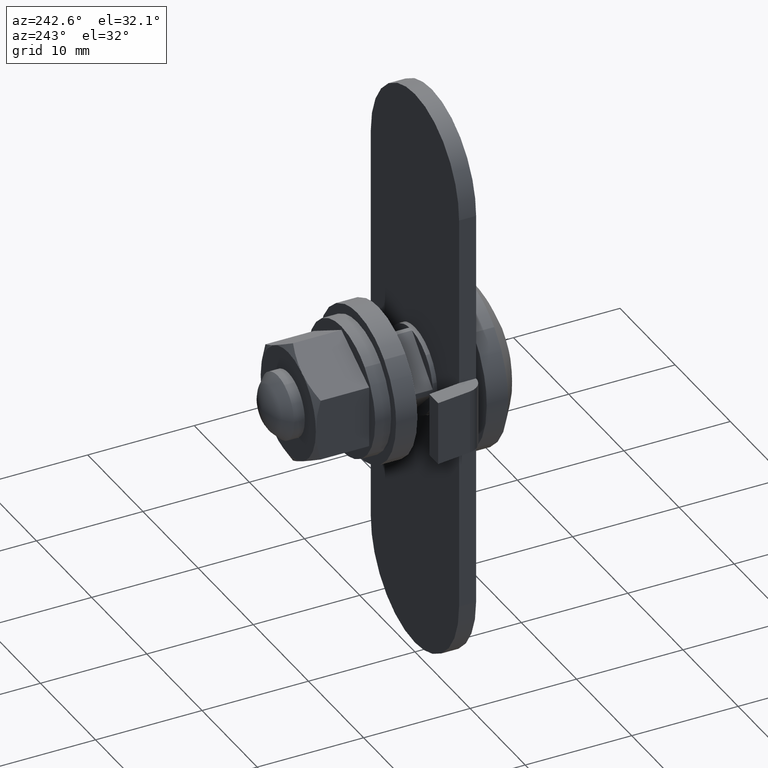
[diagram: clean part render]
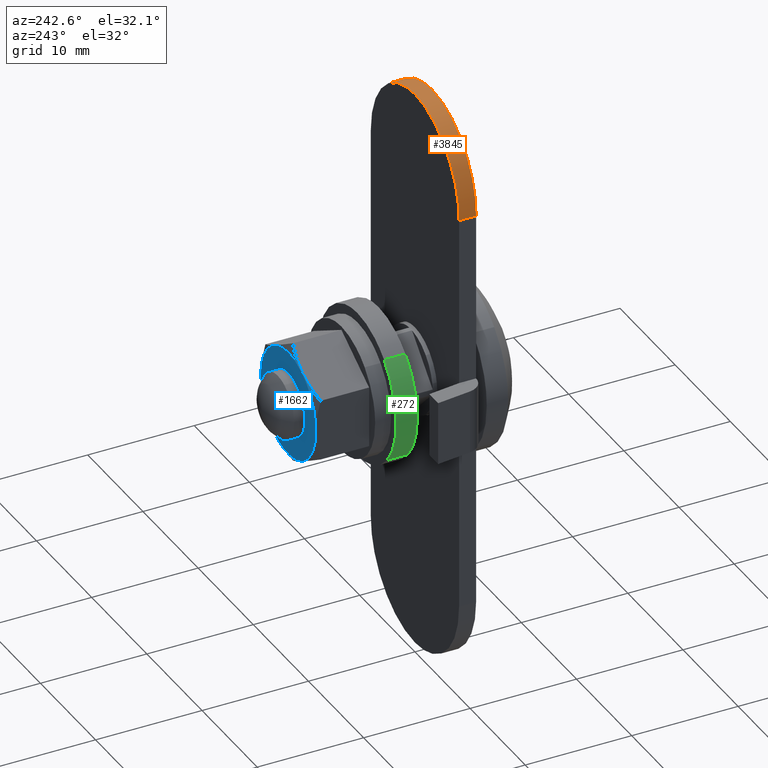
[diagram: same view with three faces highlighted in distinct colors, each labeled with its STEP entity id]
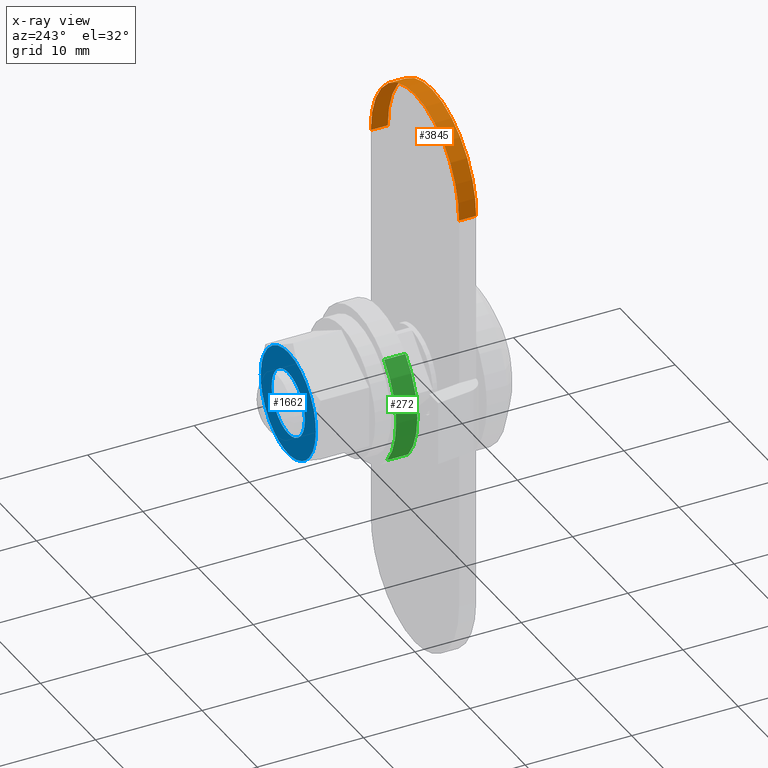
[diagram: x-ray of the same camera — body ghosted, the three highlighted faces saturated]
A machine part, auxiliary view with three faces highlighted in distinct colors.
The next image is the same camera in x-ray (body ghosted, the three faces saturated) — at least one of them is partly hidden behind the body in this view.
Their STEP definitions:

[orange] entity #3845 — the highlighted face is a freeform B-spline surface patch.
#3596=CARTESIAN_POINT('',(8.0,-1.599990999999965,19.0));
#3597=VERTEX_POINT('',#3596);
#3605=CARTESIAN_POINT('',(-0.000000671420413,-1.599990999999965,26.999999999999979));
#3606=VERTEX_POINT('',#3605);
#3607=CARTESIAN_POINT('',(8.0,-1.599990999999965,19.0));
#3608=CARTESIAN_POINT('',(8.000055658176320,-1.599990999999967,19.523601726682081));
#3609=CARTESIAN_POINT('',(7.900058436080794,-1.599990999999963,20.538051594862448));
#3610=CARTESIAN_POINT('',(7.521515978707759,-1.599990999999972,21.814067541485230));
#3611=CARTESIAN_POINT('',(6.957567482298716,-1.599990999999964,23.015969337826039));
#3612=CARTESIAN_POINT('',(6.257013327467415,-1.599990999999957,24.050641715864302));
#3613=CARTESIAN_POINT('',(5.308734373837774,-1.599990999999986,25.028422618844541));
#3614=CARTESIAN_POINT('',(4.324430070476393,-1.599990999999913,25.767838439556130));
#3615=CARTESIAN_POINT('',(3.210262216620889,-1.599991000000043,26.363364711971709));
#3616=CARTESIAN_POINT('',(1.783427558124979,-1.599990999999904,26.859192141998982));
#3617=CARTESIAN_POINT('',(0.670875504879247,-1.599990999999988,27.000181070990550));
#3618=CARTESIAN_POINT('',(-0.000000671420413,-1.599990999999965,26.999999999999979));
#3619=B_SPLINE_CURVE_WITH_KNOTS('',3,(#3607,#3608,#3609,#3610,#3611,#3612,#3613,#3614,#3615,#3616,#3617,#3618),.UNSPECIFIED.,.F.,.U.,(4,1,1,1,1,1,1,1,1,4),(0.000000037951718,1.570796537303250,3.043422620387393,3.976088266977515,5.546892700908940,6.774049362718611,8.050335254018872,9.228443648545097,10.553814228072291,12.566390705773090),.UNSPECIFIED.);
#3620=EDGE_CURVE('',#3597,#3606,#3619,.T.);
#3622=CARTESIAN_POINT('',(-8.0,-1.599990999999965,19.0));
#3623=VERTEX_POINT('',#3622);
#3624=CARTESIAN_POINT('',(-0.000000671420413,-1.599990999999965,26.999999999999979));
#3625=CARTESIAN_POINT('',(-0.409058530334494,-1.599990999999967,27.000021492303130));
#3626=CARTESIAN_POINT('',(-1.128997142312720,-1.599990999999961,26.944659344639899));
#3627=CARTESIAN_POINT('',(-2.218660525742400,-1.599990999999967,26.710486490052840));
#3628=CARTESIAN_POINT('',(-3.145530879441106,-1.599990999999970,26.378850672017400));
#3629=CARTESIAN_POINT('',(-4.095356863511993,-1.599990999999963,25.897084283627049));
#3630=CARTESIAN_POINT('',(-4.883322783046102,-1.599990999999969,25.363563316041908));
#3631=CARTESIAN_POINT('',(-5.646387689577706,-1.599990999999961,24.692976438119072));
#3632=CARTESIAN_POINT('',(-6.249944118269243,-1.599990999999970,24.022936347426349));
#3633=CARTESIAN_POINT('',(-6.856391194409314,-1.599990999999968,23.167463483428559));
#3634=CARTESIAN_POINT('',(-7.353571376795534,-1.599990999999963,22.223432441611699));
#3635=CARTESIAN_POINT('',(-7.722798476186717,-1.599990999999968,21.171135533468910));
#3636=CARTESIAN_POINT('',(-7.946885246248465,-1.599990999999961,20.112638819968112));
#3637=CARTESIAN_POINT('',(-8.000017664104293,-1.599990999999973,19.392695676937169));
#3638=CARTESIAN_POINT('',(-8.0,-1.599990999999965,19.0));
#3639=B_SPLINE_CURVE_WITH_KNOTS('',3,(#3624,#3625,#3626,#3627,#3628,#3629,#3630,#3631,#3632,#3633,#3634,#3635,#3636,#3637,#3638),.UNSPECIFIED.,.F.,.U.,(4,1,1,1,1,1,1,1,1,1,1,1,4),(0.000000038011205,1.227172697971893,2.159840542873159,3.337947909478849,4.172435515595490,5.350548260045036,6.185028635192336,7.215843494601299,8.050334768926938,9.326617916998785,10.406544262785321,11.388302338843920,12.566389948924650),.UNSPECIFIED.);
#3640=EDGE_CURVE('',#3606,#3623,#3639,.T.);
#3706=CARTESIAN_POINT('',(8.0,0.0,19.0));
#3707=VERTEX_POINT('',#3706);
#3758=CARTESIAN_POINT('',(-8.0,0.0,19.0));
#3759=VERTEX_POINT('',#3758);
#3765=CARTESIAN_POINT('',(-0.000000671420413,0.0,26.999999999999979));
#3766=VERTEX_POINT('',#3765);
#3767=CARTESIAN_POINT('',(-0.000000671420413,0.0,26.999999999999979));
#3768=CARTESIAN_POINT('',(-0.409058530334453,0.0,27.000021492303119));
#3769=CARTESIAN_POINT('',(-1.128997142312503,0.0,26.944659344639810));
#3770=CARTESIAN_POINT('',(-2.218660525744756,0.0,26.710486490053849));
#3771=CARTESIAN_POINT('',(-3.145530874310826,0.0,26.378850669165359));
#3772=CARTESIAN_POINT('',(-4.095356896828961,0.0,25.897084302152621));
#3773=CARTESIAN_POINT('',(-4.883322665121735,0.0,25.363563250486859));
#3774=CARTESIAN_POINT('',(-5.646380869981027,0.0,24.692971783885781));
#3775=CARTESIAN_POINT('',(-6.414601708059358,0.0,23.840227268056552));
#3776=CARTESIAN_POINT('',(-7.107338756405541,0.0,22.760998469852780));
#3777=CARTESIAN_POINT('',(-7.575450113111739,0.0,21.640444240427279));
#3778=CARTESIAN_POINT('',(-7.908213628331541,0.0,20.423490316932750));
#3779=CARTESIAN_POINT('',(-8.000114431770410,0.0,19.572695766128980));
#3780=CARTESIAN_POINT('',(-8.0,0.0,19.0));
#3781=B_SPLINE_CURVE_WITH_KNOTS('',3,(#3767,#3768,#3769,#3770,#3771,#3772,#3773,#3774,#3775,#3776,#3777,#3778,#3779,#3780),.UNSPECIFIED.,.F.,.U.,(4,1,1,1,1,1,1,1,1,1,1,4),(0.000000038011205,1.227172697971893,2.159840542873159,3.337947909478849,4.172435515595490,5.350548260045036,6.185028635192336,7.215843494601299,8.786653071018664,10.013847000659320,10.848336786208170,12.566389948924650),.UNSPECIFIED.);
#3782=EDGE_CURVE('',#3766,#3759,#3781,.T.);
#3784=CARTESIAN_POINT('',(8.0,0.0,19.0));
#3785=CARTESIAN_POINT('',(8.000035223863407,0.0,19.474505787027748));
#3786=CARTESIAN_POINT('',(7.909521142593536,0.0,20.488983960037849));
#3787=CARTESIAN_POINT('',(7.542416901466003,0.0,21.769546784843889));
#3788=CARTESIAN_POINT('',(6.957576740421087,0.0,23.015974436050140));
#3789=CARTESIAN_POINT('',(6.257007821979242,0.0,24.050639299313659));
#3790=CARTESIAN_POINT('',(5.308735200877441,0.0,25.028423026176888));
#3791=CARTESIAN_POINT('',(4.324430926242860,0.0,25.767841190327420));
#3792=CARTESIAN_POINT('',(3.398362635514022,0.0,26.262807954450619));
#3793=CARTESIAN_POINT('',(2.422760313678783,0.0,26.646046299451200));
#3794=CARTESIAN_POINT('',(1.341705875589080,0.0,26.923897167868589));
#3795=CARTESIAN_POINT('',(0.458145628851911,0.0,27.000034547355241));
#3796=CARTESIAN_POINT('',(-0.000000671420413,0.0,26.999999999999979));
#3797=B_SPLINE_CURVE_WITH_KNOTS('',3,(#3784,#3785,#3786,#3787,#3788,#3789,#3790,#3791,#3792,#3793,#3794,#3795,#3796),.UNSPECIFIED.,.F.,.U.,(4,1,1,1,1,1,1,1,1,1,4),(0.000000037951718,1.423522324093755,3.043422620387393,3.976088266977515,5.546892700908940,6.774049362718611,8.050335254018872,9.228443648545097,9.915672165121981,11.191955773266610,12.566390705773090),.UNSPECIFIED.);
#3798=EDGE_CURVE('',#3707,#3766,#3797,.T.);
#3811=CARTESIAN_POINT('',(-7.997258599804455,0.039999774999999,18.790584413537012));
#3812=CARTESIAN_POINT('',(-7.997258599804455,-1.640990769374965,18.790584413537012));
#3813=CARTESIAN_POINT('',(-8.217936582743215,0.039999774999999,27.217936582743196));
#3814=CARTESIAN_POINT('',(-8.217936582743215,-1.640990769374965,27.217936582743196));
#3815=CARTESIAN_POINT('',(0.209415586462976,0.039999774999999,26.997258599804461));
#3816=CARTESIAN_POINT('',(0.209415586462976,-1.640990769374965,26.997258599804461));
#3817=CARTESIAN_POINT('',(8.636767755669169,0.039999774999999,26.776580616865715));
#3818=CARTESIAN_POINT('',(8.636767755669169,-1.640990769374965,26.776580616865715));
#3819=CARTESIAN_POINT('',(7.975338669865026,0.039999774999999,18.372327234177249));
#3820=CARTESIAN_POINT('',(7.975338669865026,-1.640990769374965,18.372327234177249));
#3828=(BOUNDED_SURFACE()B_SPLINE_SURFACE(1,2,((#3811,#3813,#3815,#3817,#3819),(#3812,#3814,#3816,#3818,#3820)),.UNSPECIFIED.,.F.,.F.,.U.)B_SPLINE_SURFACE_WITH_KNOTS((2,2),(3,2,3),(0.0,1.0),(0.0,13.748284990938750,27.496569981877510),.UNSPECIFIED.)GEOMETRIC_REPRESENTATION_ITEM()RATIONAL_B_SPLINE_SURFACE(((1.0,0.688354575693754,1.0,0.688354575693754,1.0),(1.0,0.688354575693754,1.0,0.688354575693754,1.0)))REPRESENTATION_ITEM('')SURFACE());
#3829=ORIENTED_EDGE('',*,*,#3640,.F.);
#3830=ORIENTED_EDGE('',*,*,#3620,.F.);
#3831=CARTESIAN_POINT('',(8.0,0.0,19.0));
#3832=CARTESIAN_POINT('',(8.0,-1.599990999999965,19.0));
#3833=QUASI_UNIFORM_CURVE('',1,(#3831,#3832),.UNSPECIFIED.,.F.,.U.);
#3834=EDGE_CURVE('',#3707,#3597,#3833,.T.);
#3835=ORIENTED_EDGE('',*,*,#3834,.F.);
#3836=ORIENTED_EDGE('',*,*,#3798,.T.);
#3837=ORIENTED_EDGE('',*,*,#3782,.T.);
#3838=CARTESIAN_POINT('',(-8.0,0.0,19.0));
#3839=CARTESIAN_POINT('',(-8.0,-1.599990999999965,19.0));
#3840=QUASI_UNIFORM_CURVE('',1,(#3838,#3839),.UNSPECIFIED.,.F.,.U.);
#3841=EDGE_CURVE('',#3759,#3623,#3840,.T.);
#3842=ORIENTED_EDGE('',*,*,#3841,.T.);
#3843=EDGE_LOOP('',(#3829,#3830,#3835,#3836,#3837,#3842));
#3844=FACE_OUTER_BOUND('',#3843,.T.);
#3845=ADVANCED_FACE('',(#3844),#3828,.T.);

[blue] entity #1662 — the highlighted face is a freeform B-spline surface patch.
#1063=CARTESIAN_POINT('',(-2.290667037975867,11.900009000001109,-1.937226191180447));
#1064=VERTEX_POINT('',#1063);
#1065=CARTESIAN_POINT('',(0.0,11.900009000000100,-3.000000000000001));
#1066=VERTEX_POINT('',#1065);
#1067=CARTESIAN_POINT('',(-2.290667037975867,11.900009000001109,-1.937226191180447));
#1068=CARTESIAN_POINT('',(-2.167959187522973,11.900009000001040,-2.082355599094729));
#1069=CARTESIAN_POINT('',(-1.914335783619817,11.900009000000990,-2.330103358382610));
#1070=CARTESIAN_POINT('',(-1.520169120097356,11.900009000000770,-2.598203674636476));
#1071=CARTESIAN_POINT('',(-1.104753079972125,11.900009000000541,-2.801322401318448));
#1072=CARTESIAN_POINT('',(-0.610866815784699,11.900009000000500,-2.957055987698311));
#1073=CARTESIAN_POINT('',(-0.217203148779850,11.900009000000029,-3.000038314640104));
#1074=CARTESIAN_POINT('',(0.0,11.900009000000100,-3.000000000000001));
#1075=B_SPLINE_CURVE_WITH_KNOTS('',3,(#1067,#1068,#1069,#1070,#1071,#1072,#1073,#1074),.UNSPECIFIED.,.F.,.U.,(4,1,1,1,1,4),(0.000000023288281,0.570155095699295,1.058868080514473,1.425382199042716,1.954818718265623,2.606424949918516),.UNSPECIFIED.);
#1076=EDGE_CURVE('',#1064,#1066,#1075,.T.);
#1138=CARTESIAN_POINT('',(-2.065063661839178,11.900008999999780,2.176122990045787));
#1139=VERTEX_POINT('',#1138);
#1145=CARTESIAN_POINT('',(0.0,11.900009000000100,2.999999999999999));
#1146=VERTEX_POINT('',#1145);
#1147=CARTESIAN_POINT('',(0.0,11.900009000000100,2.999999999999999));
#1148=CARTESIAN_POINT('',(-0.225397064897820,11.900009000000059,3.000039538543419));
#1149=CARTESIAN_POINT('',(-0.581261604594141,11.900009000000029,2.959698161269786));
#1150=CARTESIAN_POINT('',(-1.116575282321621,11.900008999999930,2.799582209725324));
#1151=CARTESIAN_POINT('',(-1.598121602386671,11.900008999999860,2.562969909714258));
#1152=CARTESIAN_POINT('',(-1.918796305333239,11.900008999999800,2.314960937211985));
#1153=CARTESIAN_POINT('',(-2.065063661839178,11.900008999999780,2.176122990045787));
#1154=B_SPLINE_CURVE_WITH_KNOTS('',3,(#1147,#1148,#1149,#1150,#1151,#1152,#1153),.UNSPECIFIED.,.F.,.U.,(4,1,1,1,4),(0.000000017797151,0.676183665800205,1.067665248286472,1.672661792430447,2.277668014750611),.UNSPECIFIED.);
#1155=EDGE_CURVE('',#1146,#1139,#1154,.T.);
#1157=CARTESIAN_POINT('',(2.999999999999952,11.900009000000100,0.000000537233255));
#1158=VERTEX_POINT('',#1157);
#1159=CARTESIAN_POINT('',(2.999999999999952,11.900009000000100,0.000000537233255));
#1160=CARTESIAN_POINT('',(3.000038910623196,11.900009000000130,0.233163766038172));
#1161=CARTESIAN_POINT('',(2.943945716723275,11.900009000000050,0.711755770054638));
#1162=CARTESIAN_POINT('',(2.707029555305302,11.900009000000130,1.349196269604267));
#1163=CARTESIAN_POINT('',(2.370753176380269,11.900009000000081,1.865983012986135));
#1164=CARTESIAN_POINT('',(1.971576901237931,11.900009000000161,2.285251906558493));
#1165=CARTESIAN_POINT('',(1.459357704642141,11.900008999999979,2.650805143898392));
#1166=CARTESIAN_POINT('',(0.785357775257285,11.900009000000100,2.929948391237042));
#1167=CARTESIAN_POINT('',(0.269986767484092,11.900009000000191,3.000087746538068));
#1168=CARTESIAN_POINT('',(0.0,11.900009000000100,2.999999999999999));
#1169=B_SPLINE_CURVE_WITH_KNOTS('',3,(#1159,#1160,#1161,#1162,#1163,#1164,#1165,#1166,#1167,#1168),.UNSPECIFIED.,.F.,.U.,(4,1,1,1,1,1,1,4),(0.000000070898518,0.699489185830833,1.435820893225957,2.024868896167751,2.540268673966529,3.166147695031544,3.902479707221286,4.712418245835633),.UNSPECIFIED.);
#1170=EDGE_CURVE('',#1158,#1146,#1169,.T.);
#1172=CARTESIAN_POINT('',(0.0,11.900009000000100,-3.000000000000001));
#1173=CARTESIAN_POINT('',(0.319092676619438,11.900009000000100,-3.000183218651827));
#1174=CARTESIAN_POINT('',(0.895748422979232,11.900009000000100,-2.907081071898451));
#1175=CARTESIAN_POINT('',(1.620714660074322,11.900009000000111,-2.558739713039714));
#1176=CARTESIAN_POINT('',(2.193379752489969,11.900009000000100,-2.088761186176474));
#1177=CARTESIAN_POINT('',(2.564976969292179,11.900009000000081,-1.594100231254664));
#1178=CARTESIAN_POINT('',(2.820635522840400,11.900009000000050,-1.061908591088697));
#1179=CARTESIAN_POINT('',(2.964887660670760,11.900009000000219,-0.564500921336835));
#1180=CARTESIAN_POINT('',(3.000016138913902,11.900008999999940,-0.184076942392590));
#1181=CARTESIAN_POINT('',(2.999999999999952,11.900009000000100,0.000000537233255));
#1182=B_SPLINE_CURVE_WITH_KNOTS('',3,(#1172,#1173,#1174,#1175,#1176,#1177,#1178,#1179,#1180,#1181),.UNSPECIFIED.,.F.,.U.,(4,1,1,1,1,1,1,4),(0.000000070712814,0.957209675574935,1.730351467038118,2.393003869041291,3.166148102054831,3.571130579977862,4.160185265990663,4.712418851426512),.UNSPECIFIED.);
#1183=EDGE_CURVE('',#1066,#1158,#1182,.T.);
#1202=CARTESIAN_POINT('',(-2.999999999999952,11.900009000000100,-0.000000537233279));
#1203=VERTEX_POINT('',#1202);
#1204=CARTESIAN_POINT('',(-2.999999999999952,11.900009000000100,-0.000000537233279));
#1205=CARTESIAN_POINT('',(-3.000062594715719,11.900009000000169,-0.241317561811669));
#1206=CARTESIAN_POINT('',(-2.950745809277102,11.900009000000500,-0.647123453710665));
#1207=CARTESIAN_POINT('',(-2.726818136164280,11.900009000000750,-1.314968240211024));
#1208=CARTESIAN_POINT('',(-2.482015100069054,11.900009000001010,-1.711164913226049));
#1209=CARTESIAN_POINT('',(-2.290667037975867,11.900009000001109,-1.937226191180447));
#1210=B_SPLINE_CURVE_WITH_KNOTS('',3,(#1204,#1205,#1206,#1207,#1208,#1209),.UNSPECIFIED.,.F.,.U.,(4,1,1,4),(0.000000013639545,0.723936461505472,1.217527160601653,2.105994165629972),.UNSPECIFIED.);
#1211=EDGE_CURVE('',#1203,#1064,#1210,.T.);
#1213=CARTESIAN_POINT('',(-2.065063661839178,11.900008999999780,2.176122990045787));
#1214=CARTESIAN_POINT('',(-2.221447164893765,11.900008999999811,2.027745861812931));
#1215=CARTESIAN_POINT('',(-2.535111348972070,11.900008999999860,1.658228855808197));
#1216=CARTESIAN_POINT('',(-2.900756865883614,11.900008999999979,0.925620520699102));
#1217=CARTESIAN_POINT('',(-3.000183368291156,11.900009000000050,0.329718657456255));
#1218=CARTESIAN_POINT('',(-2.999999999999952,11.900009000000100,-0.000000537233279));
#1219=B_SPLINE_CURVE_WITH_KNOTS('',3,(#1213,#1214,#1215,#1216,#1217,#1218),.UNSPECIFIED.,.F.,.U.,(4,1,1,4),(0.000000019100853,0.646731345308184,1.445629682783370,2.434751064291093),.UNSPECIFIED.);
#1220=EDGE_CURVE('',#1139,#1203,#1219,.T.);
#1276=CARTESIAN_POINT('',(-4.999999999999941,11.900005618824020,-7.715016E-016));
#1277=VERTEX_POINT('',#1276);
#1329=CARTESIAN_POINT('',(-2.500002568551245,11.900003375496739,-4.330130022601770));
#1330=VERTEX_POINT('',#1329);
#1388=CARTESIAN_POINT('',(5.000000000000171,11.900005618823901,-7.715016E-016));
#1389=VERTEX_POINT('',#1388);
#1509=CARTESIAN_POINT('',(2.499999666618120,11.900009842411640,-4.330118764263081));
#1510=VERTEX_POINT('',#1509);
#1576=CARTESIAN_POINT('',(-4.999999999999941,11.900005618824020,-7.715016E-016));
#1577=CARTESIAN_POINT('',(-5.000049669443217,11.900005486381099,-0.340888435571714));
#1578=CARTESIAN_POINT('',(-4.935603998820210,11.900005228218120,-0.968097529328308));
#1579=CARTESIAN_POINT('',(-4.700442958339231,11.900004869765610,-1.754853156414150));
#1580=CARTESIAN_POINT('',(-4.373365301566627,11.900004521895170,-2.461305975409780));
#1581=CARTESIAN_POINT('',(-3.922631592288516,11.900004153945490,-3.148043034249164));
#1582=CARTESIAN_POINT('',(-3.274680155713946,11.900003748463130,-3.817510745442342));
#1583=CARTESIAN_POINT('',(-2.759804130120716,11.900003492049120,-4.180163728910965));
#1584=CARTESIAN_POINT('',(-2.500002568551245,11.900003375496739,-4.330130022601770));
#1585=B_SPLINE_CURVE_WITH_KNOTS('',3,(#1576,#1577,#1578,#1579,#1580,#1581,#1582,#1583,#1584),.UNSPECIFIED.,.F.,.U.,(4,1,1,1,1,1,4),(0.000000023676209,1.022655724946675,1.881692629094689,2.454388157606577,3.354310345891464,4.336070179740759,5.236002951309609),.UNSPECIFIED.);
#1586=EDGE_CURVE('',#1277,#1330,#1585,.T.);
#1593=CARTESIAN_POINT('',(-5.499499980618004,11.900009000000100,5.499495155052697));
#1594=CARTESIAN_POINT('',(-5.499499980618004,11.900009000000100,-5.499523834627240));
#1595=CARTESIAN_POINT('',(5.499500248839138,11.900009000000100,5.499495155052697));
#1596=CARTESIAN_POINT('',(5.499500248839138,11.900009000000100,-5.499523834627240));
#1597=B_SPLINE_SURFACE_WITH_KNOTS('',1,1,((#1593,#1595),(#1594,#1596)),.UNSPECIFIED.,.F.,.F.,.U.,(2,2),(2,2),(0.0,10.999018989679939),(0.0,10.999000229457140),.UNSPECIFIED.);
#1598=CARTESIAN_POINT('',(2.499999666618120,11.900009842411640,-4.330118764263081));
#1599=CARTESIAN_POINT('',(2.842496488706197,11.900009553169960,-4.132476221085924));
#1600=CARTESIAN_POINT('',(3.447185689573260,11.900008966771630,-3.680007757483824));
#1601=CARTESIAN_POINT('',(4.077047319272815,11.900008157641389,-2.937606233813394));
#1602=CARTESIAN_POINT('',(4.520461647454651,11.900007418928620,-2.183817390186032));
#1603=CARTESIAN_POINT('',(4.887878477294634,11.900006583810979,-1.254369455699325));
#1604=CARTESIAN_POINT('',(5.000162910341920,11.900005967890831,-0.477256133005347));
#1605=CARTESIAN_POINT('',(5.000000000000171,11.900005618823901,-7.715016E-016));
#1606=B_SPLINE_CURVE_WITH_KNOTS('',3,(#1598,#1599,#1600,#1601,#1602,#1603,#1604,#1605),.UNSPECIFIED.,.F.,.U.,(4,1,1,1,1,4),(0.000000023677173,1.186278677870464,2.249845753710979,2.904339016394471,3.804275915136835,5.235994498209959),.UNSPECIFIED.);
#1607=EDGE_CURVE('',#1510,#1389,#1606,.T.);
#1608=ORIENTED_EDGE('',*,*,#1607,.F.);
#1609=CARTESIAN_POINT('',(-2.500002568551245,11.900003375496739,-4.330130022601770));
#1610=CARTESIAN_POINT('',(-2.086782465298820,11.900003909948230,-4.568931758495586));
#1611=CARTESIAN_POINT('',(-1.319225515237190,11.900004902692780,-4.875518380312427));
#1612=CARTESIAN_POINT('',(-0.273400263388834,11.900006255344760,-5.017511053175947));
#1613=CARTESIAN_POINT('',(0.682758400926282,11.900007492023480,-4.982310975489592));
#1614=CARTESIAN_POINT('',(1.593363581467073,11.900008669784320,-4.777847251495222));
#1615=CARTESIAN_POINT('',(2.228413284606983,11.900009491146530,-4.486938770074541));
#1616=CARTESIAN_POINT('',(2.499999666618120,11.900009842411640,-4.330118764263081));
#1617=B_SPLINE_CURVE_WITH_KNOTS('',3,(#1609,#1610,#1611,#1612,#1613,#1614,#1615,#1616),.UNSPECIFIED.,.F.,.U.,(4,1,1,1,1,4),(0.000000023676480,1.431721400886018,2.454388985198478,3.149774742362752,4.295160878096006,5.236004716744321),.UNSPECIFIED.);
#1618=EDGE_CURVE('',#1330,#1510,#1617,.T.);
#1619=ORIENTED_EDGE('',*,*,#1618,.F.);
#1620=ORIENTED_EDGE('',*,*,#1586,.F.);
#1621=CARTESIAN_POINT('',(-0.000000849017591,11.900005618823959,4.999994143658707));
#1622=VERTEX_POINT('',#1621);
#1623=CARTESIAN_POINT('',(-0.000000849017591,11.900005618823959,4.999994143658707));
#1624=CARTESIAN_POINT('',(-0.265891244122290,11.900005618823929,5.000012174539277));
#1625=CARTESIAN_POINT('',(-0.777211215472876,11.900005618824039,4.959109596527179));
#1626=CARTESIAN_POINT('',(-1.575364226401720,11.900005618823940,4.769583271987931));
#1627=CARTESIAN_POINT('',(-2.408206591862182,11.900005618824020,4.418652310918147));
#1628=CARTESIAN_POINT('',(-3.191505401086208,11.900005618823981,3.888270154630940));
#1629=CARTESIAN_POINT('',(-3.888256271539887,11.900005618824030,3.191489187963577));
#1630=CARTESIAN_POINT('',(-4.476368575046842,11.900005618824011,2.323093890785476));
#1631=CARTESIAN_POINT('',(-4.899058637444531,11.900005618824039,1.227151792458958));
#1632=CARTESIAN_POINT('',(-5.000098349980033,11.900005618824000,0.409069033852147));
#1633=CARTESIAN_POINT('',(-4.999999999999941,11.900005618824020,-7.715016E-016));
#1634=B_SPLINE_CURVE_WITH_KNOTS('',3,(#1623,#1624,#1625,#1626,#1627,#1628,#1629,#1630,#1631,#1632,#1633),.UNSPECIFIED.,.F.,.U.,(4,1,1,1,1,1,1,1,4),(0.000000041725249,0.797673560984784,1.533988228748722,2.454389884008507,3.497498921418366,4.356529531242854,5.399637778538608,6.626836056875336,7.854027134939896),.UNSPECIFIED.);
#1635=EDGE_CURVE('',#1622,#1277,#1634,.T.);
#1636=ORIENTED_EDGE('',*,*,#1635,.F.);
#1637=CARTESIAN_POINT('',(5.000000000000171,11.900005618823901,-7.715016E-016));
#1638=CARTESIAN_POINT('',(5.000017749211810,11.900005618823910,0.265890552634401));
#1639=CARTESIAN_POINT('',(4.959116657451716,11.900005618823920,0.777211243256671));
#1640=CARTESIAN_POINT('',(4.788529384438165,11.900005618823860,1.495543320386264));
#1641=CARTESIAN_POINT('',(4.526196395076262,11.900005618823970,2.163359404656779));
#1642=CARTESIAN_POINT('',(4.121890054517867,11.900005618823901,2.877157087402496));
#1643=CARTESIAN_POINT('',(3.569872508992621,11.900005618823769,3.541428631798907));
#1644=CARTESIAN_POINT('',(2.875507707757597,11.900005618824199,4.118418581087517));
#1645=CARTESIAN_POINT('',(2.183786241781941,11.900005618823741,4.521547612790113));
#1646=CARTESIAN_POINT('',(1.227071759303258,11.900005618824091,4.890640115012772));
#1647=CARTESIAN_POINT('',(0.490904415140437,11.900005618823901,5.000234920364200));
#1648=CARTESIAN_POINT('',(-0.000000849017591,11.900005618823959,4.999994143658707));
#1649=B_SPLINE_CURVE_WITH_KNOTS('',3,(#1637,#1638,#1639,#1640,#1641,#1642,#1643,#1644,#1645,#1646,#1647,#1648),.UNSPECIFIED.,.F.,.U.,(4,1,1,1,1,1,1,1,1,4),(0.000000041429454,0.797673657806108,1.533988415497107,2.208948268636263,2.945272408085462,3.988362171905692,4.786045204077906,5.645079595046719,6.381403718252956,7.854028091987579),.UNSPECIFIED.);
#1650=EDGE_CURVE('',#1389,#1622,#1649,.T.);
#1651=ORIENTED_EDGE('',*,*,#1650,.F.);
#1652=EDGE_LOOP('',(#1608,#1619,#1620,#1636,#1651));
#1653=FACE_OUTER_BOUND('',#1652,.T.);
#1654=ORIENTED_EDGE('',*,*,#1183,.T.);
#1655=ORIENTED_EDGE('',*,*,#1170,.T.);
#1656=ORIENTED_EDGE('',*,*,#1155,.T.);
#1657=ORIENTED_EDGE('',*,*,#1220,.T.);
#1658=ORIENTED_EDGE('',*,*,#1211,.T.);
#1659=ORIENTED_EDGE('',*,*,#1076,.T.);
#1660=EDGE_LOOP('',(#1654,#1655,#1656,#1657,#1658,#1659));
#1661=FACE_BOUND('',#1660,.T.);
#1662=ADVANCED_FACE('',(#1653,#1661),#1597,.F.);

[green] entity #272 — the highlighted face is a freeform B-spline surface patch.
#70=CARTESIAN_POINT('',(-5.344889613109434,5.400009000002914,-4.520194410248760));
#71=VERTEX_POINT('',#70);
#120=CARTESIAN_POINT('',(-4.818481888316885,5.400008999998708,5.077620483818892));
#121=VERTEX_POINT('',#120);
#132=CARTESIAN_POINT('',(-4.818481888525673,3.400009000000095,5.077620483620761));
#133=VERTEX_POINT('',#132);
#134=CARTESIAN_POINT('',(-4.818481888316885,5.400008999998708,5.077620483818892));
#135=CARTESIAN_POINT('',(-4.818481888525673,3.400009000000095,5.077620483620761));
#136=QUASI_UNIFORM_CURVE('',1,(#134,#135),.UNSPECIFIED.,.F.,.U.);
#137=EDGE_CURVE('',#121,#133,#136,.T.);
#187=CARTESIAN_POINT('',(-5.344889613389635,3.400009000000095,-4.520194409917437));
#188=VERTEX_POINT('',#187);
#200=CARTESIAN_POINT('',(-5.344889613109434,5.400009000002914,-4.520194410248760));
#201=CARTESIAN_POINT('',(-5.344889613389635,3.400009000000095,-4.520194409917437));
#202=QUASI_UNIFORM_CURVE('',1,(#200,#201),.UNSPECIFIED.,.F.,.U.);
#203=EDGE_CURVE('',#71,#188,#202,.T.);
#208=CARTESIAN_POINT('',(-4.818482029856276,5.450009000000099,5.077620597086010));
#209=CARTESIAN_POINT('',(-9.613550507225485,5.450009000000099,0.527270517091160));
#210=CARTESIAN_POINT('',(-5.344889500583254,5.450009000000100,-4.520194268674178));
#211=CARTESIAN_POINT('',(-4.818482029856276,3.348759000000094,5.077620597086010));
#212=CARTESIAN_POINT('',(-9.613550507225485,3.348759000000094,0.527270517091160));
#213=CARTESIAN_POINT('',(-5.344889500583254,3.348759000000094,-4.520194268674178));
#221=(BOUNDED_SURFACE()B_SPLINE_SURFACE(2,1,((#208,#211),(#209,#212),(#210,#213)),.UNSPECIFIED.,.F.,.F.,.U.)B_SPLINE_SURFACE_WITH_KNOTS((3,3),(2,2),(0.0,11.131004910961529),(0.0,2.101250000000006),.UNSPECIFIED.)GEOMETRIC_REPRESENTATION_ITEM()RATIONAL_B_SPLINE_SURFACE(((1.0,1.0),(0.718822509939086,0.718822509939086),(0.977505800795127,0.977505800795127)))REPRESENTATION_ITEM('')SURFACE());
#222=CARTESIAN_POINT('',(-6.999999999999963,5.400009000000099,-0.000000719347240));
#223=VERTEX_POINT('',#222);
#224=CARTESIAN_POINT('',(-6.999999999999963,5.400009000000099,-0.000000719347240));
#225=CARTESIAN_POINT('',(-7.000048370254477,5.400009000000374,-0.435094834237679));
#226=CARTESIAN_POINT('',(-6.921002394264853,5.400009000000893,-1.279664154986524));
#227=CARTESIAN_POINT('',(-6.594024825291756,5.400009000001623,-2.442086068110899));
#228=CARTESIAN_POINT('',(-6.081505993612591,5.400009000002298,-3.534260102837009));
#229=CARTESIAN_POINT('',(-5.625879970475958,5.400009000002709,-4.188005349370274));
#230=CARTESIAN_POINT('',(-5.344889613109434,5.400009000002914,-4.520194410248760));
#231=B_SPLINE_CURVE_WITH_KNOTS('',3,(#224,#225,#226,#227,#228,#229,#230),.UNSPECIFIED.,.F.,.U.,(4,1,1,1,4),(5.914162E-009,1.305278516062681,2.533771029164062,3.608708428733820,4.913986938888450),.UNSPECIFIED.);
#232=EDGE_CURVE('',#223,#71,#231,.T.);
#233=ORIENTED_EDGE('',*,*,#232,.T.);
#234=ORIENTED_EDGE('',*,*,#203,.T.);
#235=CARTESIAN_POINT('',(-6.999999999999963,3.400009000000095,-0.000000719347240));
#236=VERTEX_POINT('',#235);
#237=CARTESIAN_POINT('',(-6.999999999999963,3.400009000000095,-0.000000719347240));
#238=CARTESIAN_POINT('',(-7.000011221951684,3.400009000000099,-0.332715861483631));
#239=CARTESIAN_POINT('',(-6.947008428137847,3.400009000000091,-1.074935086429578));
#240=CARTESIAN_POINT('',(-6.706512515819394,3.400009000000095,-2.100486242007996));
#241=CARTESIAN_POINT('',(-6.216571251862066,3.400009000000097,-3.313383403310762));
#242=CARTESIAN_POINT('',(-5.725163315651229,3.400009000000096,-4.070828433636439));
#243=CARTESIAN_POINT('',(-5.344889613389635,3.400009000000095,-4.520194409917437));
#244=B_SPLINE_CURVE_WITH_KNOTS('',3,(#237,#238,#239,#240,#241,#242,#243),.UNSPECIFIED.,.F.,.U.,(4,1,1,1,4),(5.913509E-009,0.998152078503211,2.226657634888922,3.148020190183676,4.913986938454525),.UNSPECIFIED.);
#245=EDGE_CURVE('',#236,#188,#244,.T.);
#246=ORIENTED_EDGE('',*,*,#245,.F.);
#247=CARTESIAN_POINT('',(-4.818481888525673,3.400009000000095,5.077620483620761));
#248=CARTESIAN_POINT('',(-5.054581637533776,3.400009000000098,4.853586163487742));
#249=CARTESIAN_POINT('',(-5.515487292831797,3.400009000000103,4.350635198722729));
#250=CARTESIAN_POINT('',(-6.198526753652568,3.400009000000082,3.343788066998346));
#251=CARTESIAN_POINT('',(-6.686430671204958,3.400009000000110,2.208233493719467));
#252=CARTESIAN_POINT('',(-6.950267538933436,3.400009000000094,1.020803081561522));
#253=CARTESIAN_POINT('',(-7.000015153830701,3.400009000000097,0.340270284757913));
#254=CARTESIAN_POINT('',(-6.999999999999963,3.400009000000095,-0.000000719347240));
#255=B_SPLINE_CURVE_WITH_KNOTS('',3,(#247,#248,#249,#250,#251,#252,#253,#254),.UNSPECIFIED.,.F.,.U.,(4,1,1,1,1,4),(0.000000011232593,0.976427833234549,2.041634724500767,3.639422188787696,4.660243769398436,5.681056902062737),.UNSPECIFIED.);
#256=EDGE_CURVE('',#133,#236,#255,.T.);
#257=ORIENTED_EDGE('',*,*,#256,.F.);
#258=ORIENTED_EDGE('',*,*,#137,.F.);
#259=CARTESIAN_POINT('',(-4.818481888316885,5.400008999998708,5.077620483818892));
#260=CARTESIAN_POINT('',(-5.129723843541790,5.400008999998805,4.782317766898802));
#261=CARTESIAN_POINT('',(-5.678056436799439,5.400008999998941,4.156584466109444));
#262=CARTESIAN_POINT('',(-6.229655251370025,5.400008999999218,3.240770434181067));
#263=CARTESIAN_POINT('',(-6.638977270354851,5.400008999999460,2.288028527967854));
#264=CARTESIAN_POINT('',(-6.923594065655192,5.400008999999773,1.257513804175713));
#265=CARTESIAN_POINT('',(-7.000045816224027,5.400008999999915,0.429039431401055));
#266=CARTESIAN_POINT('',(-6.999999999999963,5.400009000000099,-0.000000719347240));
#267=B_SPLINE_CURVE_WITH_KNOTS('',3,(#259,#260,#261,#262,#263,#264,#265,#266),.UNSPECIFIED.,.F.,.U.,(4,1,1,1,1,4),(0.000000011231418,1.287114215280472,2.485467265680052,3.195589647891340,4.393942698301751,5.681056902350584),.UNSPECIFIED.);
#268=EDGE_CURVE('',#121,#223,#267,.T.);
#269=ORIENTED_EDGE('',*,*,#268,.T.);
#270=EDGE_LOOP('',(#233,#234,#246,#257,#258,#269));
#271=FACE_OUTER_BOUND('',#270,.T.);
#272=ADVANCED_FACE('',(#271),#221,.T.);